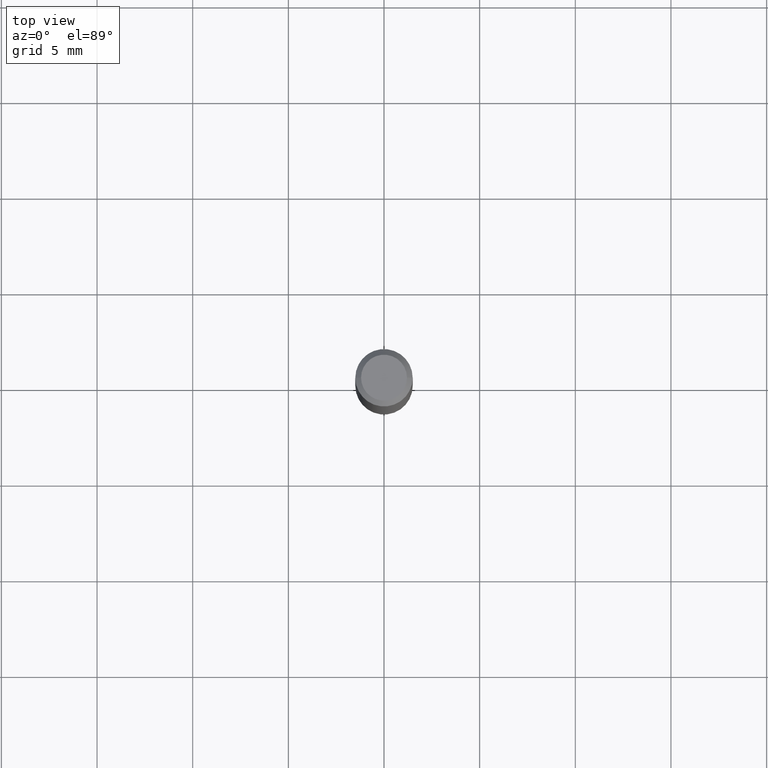
[diagram: clean part render]
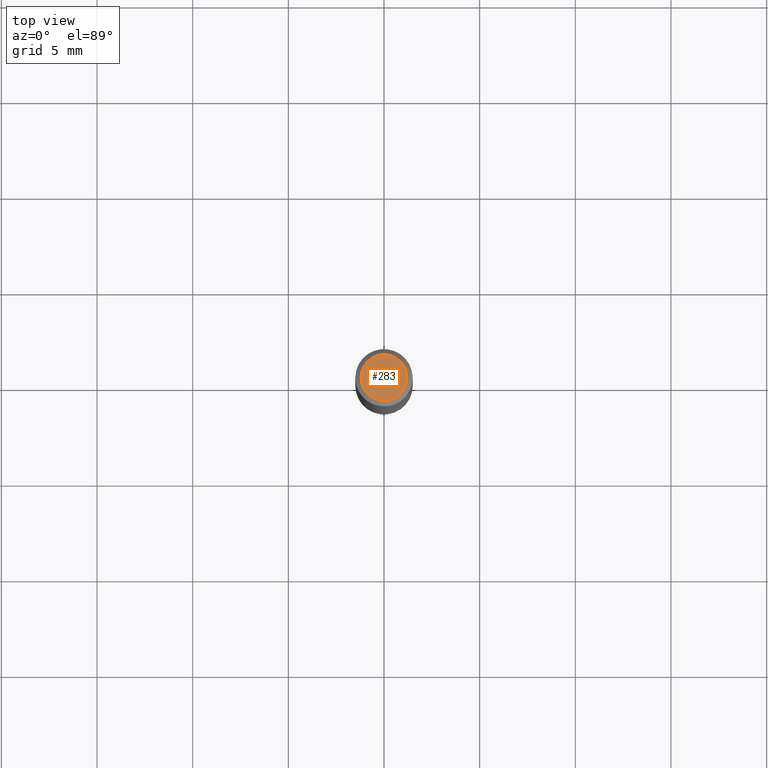
[diagram: same view with one face highlighted and labeled with its STEP entity id]
A machine part, top view. The second image highlights one B-rep face of the part: STEP entity #283.
In plain terms, the highlighted planar face has unit normal (0, -0, -1).
Its self-contained STEP definition (entity closure, byte-faithful):
#11 = CARTESIAN_POINT ( 'NONE',  ( 8.265746106709734507E-48, -1.180129479067563789E-33, -3.380025165646692144E-19 ) ) ;
#16 = FACE_OUTER_BOUND ( 'NONE', #206, .T. ) ;
#25 = CARTESIAN_POINT ( 'NONE',  ( 8.265746106709734507E-48, -1.180129479067563789E-33, -3.380025165646692144E-19 ) ) ;
#31 = EDGE_CURVE ( 'NONE', #138, #259, #226, .T. ) ;
#62 = DIRECTION ( 'NONE',  ( -2.445468806185136597E-29, 3.491481338843145583E-15, 1.000000000000000000 ) ) ;
#113 = PLANE ( 'NONE',  #137 ) ;
#118 = CIRCLE ( 'NONE', #151, 0.04724000000000000421 ) ;
#137 = AXIS2_PLACEMENT_3D ( 'NONE', #423, #153, #307 ) ;
#138 = VERTEX_POINT ( 'NONE', #139 ) ;
#139 = CARTESIAN_POINT ( 'NONE',  ( 0.04724000000000000421, -3.852183633974369345E-16, -3.380025165621689721E-19 ) ) ;
#151 = AXIS2_PLACEMENT_3D ( 'NONE', #25, #162, #277 ) ;
#153 = DIRECTION ( 'NONE',  ( 2.438088387897960049E-29, -3.491481338843145188E-15, -1.000000000000000000 ) ) ;
#162 = DIRECTION ( 'NONE',  ( -2.445468806185136597E-29, 3.491481338843145583E-15, 1.000000000000000000 ) ) ;
#206 = EDGE_LOOP ( 'NONE', ( #409, #480 ) ) ;
#226 = CIRCLE ( 'NONE', #235, 0.04724000000000000421 ) ;
#235 = AXIS2_PLACEMENT_3D ( 'NONE', #11, #62, #471 ) ;
#259 = VERTEX_POINT ( 'NONE', #310 ) ;
#277 = DIRECTION ( 'NONE',  ( 1.000000000000000000, -6.982962677686266711E-15, 4.876185090822587894E-29 ) ) ;
#283 = ADVANCED_FACE ( 'NONE', ( #16 ), #113, .F. ) ;
#307 = DIRECTION ( 'NONE',  ( -1.000000000000000000, 6.982962677686265922E-15, -4.876176775795935793E-29 ) ) ;
#310 = CARTESIAN_POINT ( 'NONE',  ( -0.04724000000000000421, 3.504923541997677355E-16, -3.380025165670481712E-19 ) ) ;
#409 = ORIENTED_EDGE ( 'NONE', *, *, #452, .T. ) ;
#423 = CARTESIAN_POINT ( 'NONE',  ( 4.132873053354867254E-48, -5.900647395337818946E-34, -1.690012582823346072E-19 ) ) ;
#452 = EDGE_CURVE ( 'NONE', #259, #138, #118, .T. ) ;
#471 = DIRECTION ( 'NONE',  ( 1.000000000000000000, -6.982962677686266711E-15, 4.876185090822587894E-29 ) ) ;
#480 = ORIENTED_EDGE ( 'NONE', *, *, #31, .T. ) ;